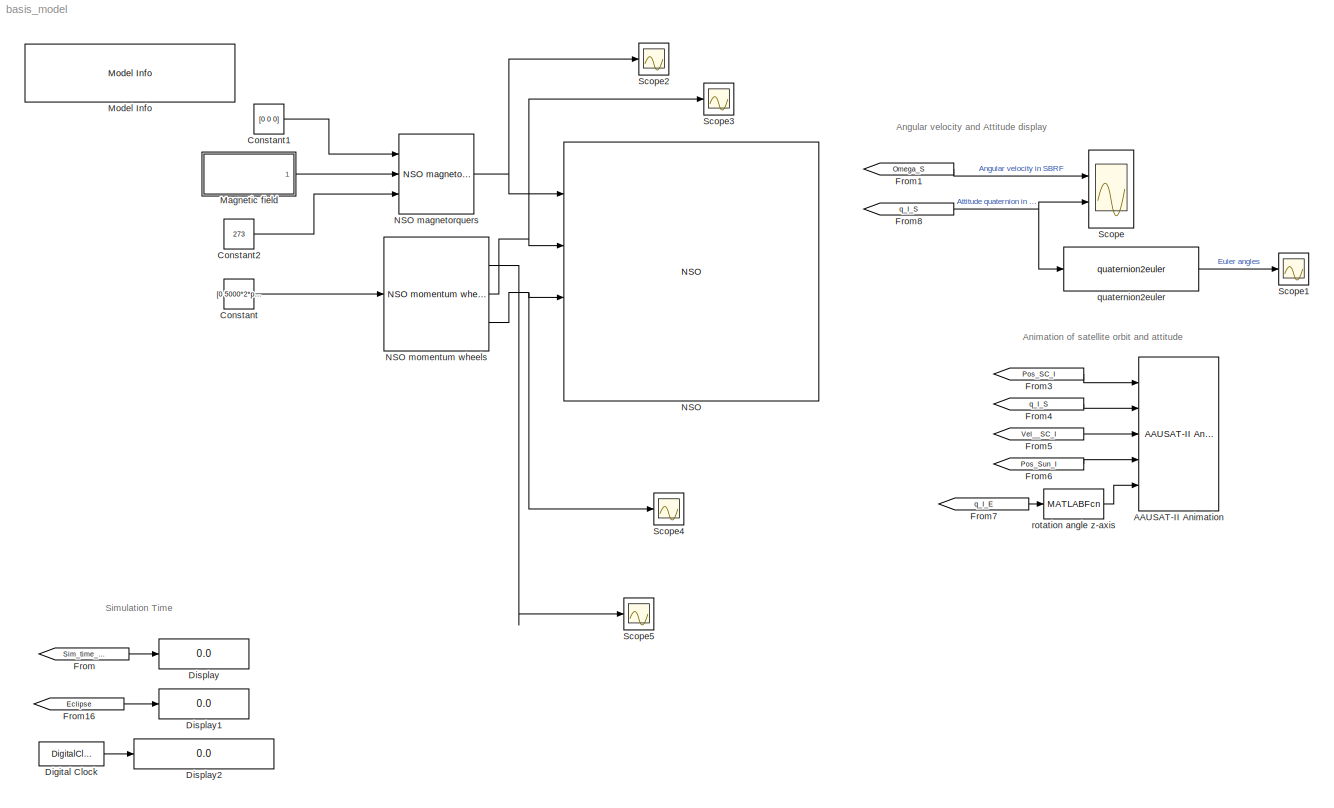
MODEL basis_model
KIND model
CONFIG PreLoadFcn = \n
CONFIG StartFcn = \n\n
BLOCK [Reference] AAUSAT-II Animation  REF=components_lib/Other model utilities/AAUSAT-II Animation  (lib defined in mdl_419550584dda)
  Ports = [5]
  ShowPortLabels = on
  SourceBlock = components_lib/Other model utilities/AAUSAT-II Animation
  SourceType = AAUSAT-II Animation
  u1 = [-20000000 20000000 -20000000 20000000 -20000000 20000000]
  u10 = on
  u11 = 150
  u12 = on
  u13 = 'earth2150.jpg'
  u14 = on
  u15 = on
  u16 = off
  u17 = 150
  u18 = 15
  u19 = off
  u2 = 50
  u20 = on
  u3 = 1000000
  u4 = 6378000
  u5 = Fixed position
  u6 = [70000000 70000000 70000000]
  u7 = 9
  u8 = off
  u9 = off
BLOCK [Constant] Constant
  Value = [0 5000*2*pi/60 0]
BLOCK [Constant] Constant1
  Value = [0 0 0]
BLOCK [Constant] Constant2
  Value = 273
BLOCK [DigitalClock] Digital Clock
BLOCK [Display] Display
  Decimation = 1
  Lockdown = off
  Ports = [1]
BLOCK [Display] Display1
  Decimation = 1
  Lockdown = off
  Ports = [1]
BLOCK [Display] Display2
  Decimation = 1
  Format = long
  Lockdown = off
  Ports = [1]
BLOCK [From] From
  CloseFcn = tagdialog Close
  GotoTag = Sim_time_JD
BLOCK [From] From1
  CloseFcn = tagdialog Close
  GotoTag = Omega_S
BLOCK [From] From16
  CloseFcn = tagdialog Close
  GotoTag = Eclipse
BLOCK [From] From3
  CloseFcn = tagdialog Close
  GotoTag = Pos_SC_I
BLOCK [From] From4
  CloseFcn = tagdialog Close
  GotoTag = q_I_S
BLOCK [From] From5
  CloseFcn = tagdialog Close
  GotoTag = Vel__SC_I
BLOCK [From] From6
  CloseFcn = tagdialog Close
  GotoTag = Pos_Sun_I
BLOCK [From] From7
  CloseFcn = tagdialog Close
  GotoTag = q_I_E
BLOCK [From] From8
  CloseFcn = tagdialog Close
  GotoTag = q_I_S
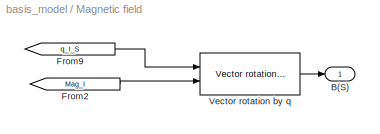
BLOCK [SubSystem] Magnetic field
  MaskHideContents = off
  MinAlgLoopOccurrences = off
  Ports = [0, 1]
  RTWSystemCode = Auto
  TreatAsAtomicUnit = off
BLOCK [Outport] Magnetic field/B(S)
  BusOutputAsStruct = off
  IconDisplay = Port number
BLOCK [From] Magnetic field/From2
  CloseFcn = tagdialog Close
  GotoTag = Mag_I
BLOCK [From] Magnetic field/From9
  CloseFcn = tagdialog Close
  GotoTag = q_I_S
BLOCK [Reference] Magnetic field/Vector rotation by q  REF=components_lib/Math utilities/Quaternion operations/Vector rotation by q  (lib defined in mdl_419550584dda)
  Ports = [2, 1]
  ShowPortLabels = on
  SourceBlock = components_lib/Math utilities/Quaternion operations/Vector rotation by q
  SourceType = SubSystem
BLOCK [Reference] Model Info  REF=simulink/Model-Wide\nUtilities/Model Info
  BlockCM = None
  DisplayStringWithTags = sun to eclipse : 2452315.560376\n32 sec. before : 2452315.56\neclipse to sun : 2452315.513363
  Frame = on
  HorizontalTextAlignment = Center
  InitialBlockCM = None
  LeftAlignmentValue = 0.5
  MaskDisplayString = sun to eclipse : 2452315.560376\\n32 sec. before : 2452315.56\\neclipse to sun : 2452315.513363
  Ports = []
  ShowPortLabels = on
  SourceBlock = simulink/Model-Wide\nUtilities/Model Info
  SourceBlockDiagram = basis_model
  SourceType = CMBlock
  TagMaxNumber = 20
BLOCK [Reference] NSO  REF=components_lib/NSO  (lib defined in mdl_419550584dda)
  Cd = 2
  Description = AAUSAT-II Model
  Dim = [0.1 0.1 0.3]
  Ports = [4, 4]
  ShowPortLabels = on
  SourceBlock = components_lib/NSO
  Tag = AAUSAT-II Model
  alb_emu_enabled = off
  enable_dist = off
  enable_sensor_emulation = off
  inertia_c = [1377 1623 1569]/1e6
  inertia_d = 0
  init_jd = 2452315.56
  mass_sc = 1
  q_init_s_i = [sqrt(0.5) 0 0 sqrt(0.5)]
  q_s_c = [1 0 0 0]
  r_com_s = [56.11 49.829 50.788]/1e3
  r_com_s_deployed = 0
  rho = 9.25e-13
  sat_temp_start = 0
  w_init_s = [0.1 0.1 0.1]*0
BLOCK [Reference] NSO magnetorquers  REF=components_lib/Actuator Emulation/NSO magnetorquers  (lib defined in mdl_419550584dda)
  Ports = [3, 1]
  ShowPortLabels = on
  SourceBlock = components_lib/Actuator Emulation/NSO magnetorquers
  SourceType = SubSystem
BLOCK [Reference] NSO momentum wheels  REF=components_lib/Actuator Emulation/NSO momentum wheels  (lib defined in mdl_419550584dda)
  Ports = [1, 3]
  ShowPortLabels = on
  SourceBlock = components_lib/Actuator Emulation/NSO momentum wheels
  w_mw_i = [1078.6 1078.6 1078.6] *0.5
BLOCK [Scope] Scope
  DataFormat = StructureWithTime
  Floating = off
  LimitDataPoints = off
  NumInputPorts = 2
  Ports = [2]
  SampleTime = 0
  YMax = 0.01~1
  YMin = -0.01~-0.5
BLOCK [Scope] Scope1
  DataFormat = StructureWithTime
  Floating = off
  LimitDataPoints = off
  NumInputPorts = 1
  Ports = [1]
  SampleTime = 0
  SaveName = ScopeData1
  YMax = 3.5
  YMin = -3.5
BLOCK [Scope] Scope2
  DataFormat = StructureWithTime
  Floating = off
  LimitDataPoints = off
  NumInputPorts = 1
  Ports = [1]
  SampleTime = 0
  SaveName = ScopeData2
  YMax = 1
  YMin = -1
BLOCK [Scope] Scope3
  DataFormat = StructureWithTime
  Floating = off
  LimitDataPoints = off
  NumInputPorts = 1
  Ports = [1]
  SampleTime = 0
  SaveName = ScopeData3
  YMax = 4e-05
  YMin = -2.5e-05
BLOCK [Scope] Scope4
  DataFormat = StructureWithTime
  Floating = off
  LimitDataPoints = off
  NumInputPorts = 1
  Ports = [1]
  SampleTime = 0
  SaveName = ScopeData4
  YMax = 0.0025
  YMin = 0
BLOCK [Scope] Scope5
  DataFormat = StructureWithTime
  Floating = off
  LimitDataPoints = off
  NumInputPorts = 1
  Ports = [1]
  SampleTime = 0
  SaveName = ScopeData5
  YMax = 525
  YMin = 0
BLOCK [Reference] quaternion2euler  REF=components_lib/Math utilities/Quaternion operations/quaternion2euler  (lib defined in mdl_419550584dda)
  Ports = [1, 1]
  ShowPortLabels = on
  SourceBlock = components_lib/Math utilities/Quaternion operations/quaternion2euler
  SourceType = SubSystem
BLOCK [MATLABFcn] rotation angle z-axis
  MATLABFcn = 2*acos(u(4))
ANNOTATION (root): Angular velocity and Attitude display
ANNOTATION (root): Animation of satellite orbit and attitude
ANNOTATION (root): Simulation Time
LINE Constant1:1 -> NSO magnetorquers:1
LINE Constant2:1 -> NSO magnetorquers:3
LINE Constant:1 -> NSO momentum wheels:1
LINE Digital Clock:1 -> Display2:1
LINE From16:1 -> Display1:1
LINE From1:1 -> Scope:1
LINE From3:1 -> AAUSAT-II Animation:1
LINE From4:1 -> AAUSAT-II Animation:2
LINE From5:1 -> AAUSAT-II Animation:3
LINE From6:1 -> AAUSAT-II Animation:4
LINE From7:1 -> rotation angle z-axis:1
NET From8:1 -> Scope:2, quaternion2euler:1
LINE From:1 -> Display:1
LINE Magnetic field/From2:1 -> Magnetic field/Vector rotation by q:2
LINE Magnetic field/From9:1 -> Magnetic field/Vector rotation by q:1
LINE Magnetic field/Vector rotation by q:1 -> Magnetic field/B(S):1
LINE Magnetic field:1 -> NSO magnetorquers:2
NET NSO magnetorquers:1 -> NSO:1, Scope2:1
LINE NSO momentum wheels:1 -> Scope5:1
NET NSO momentum wheels:2 -> NSO:2, Scope3:1
NET NSO momentum wheels:3 -> NSO:3, Scope4:1
LINE quaternion2euler:1 -> Scope1:1
LINE rotation angle z-axis:1 -> AAUSAT-II Animation:5
note: NET lines group one-source signal fan-out (src -> all destinations, sorted); 1:1 wires keep LINE
